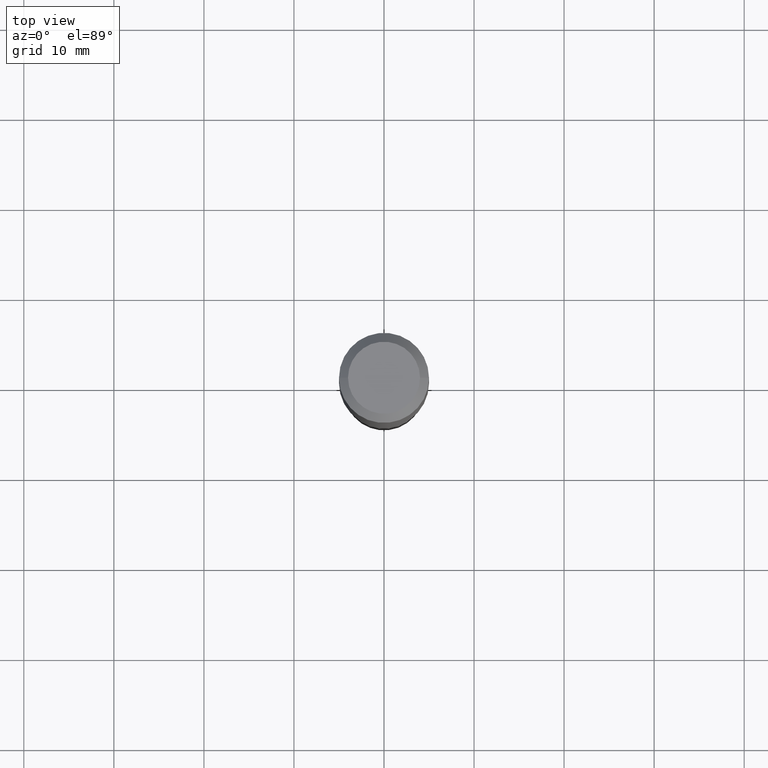
[diagram: clean part render]
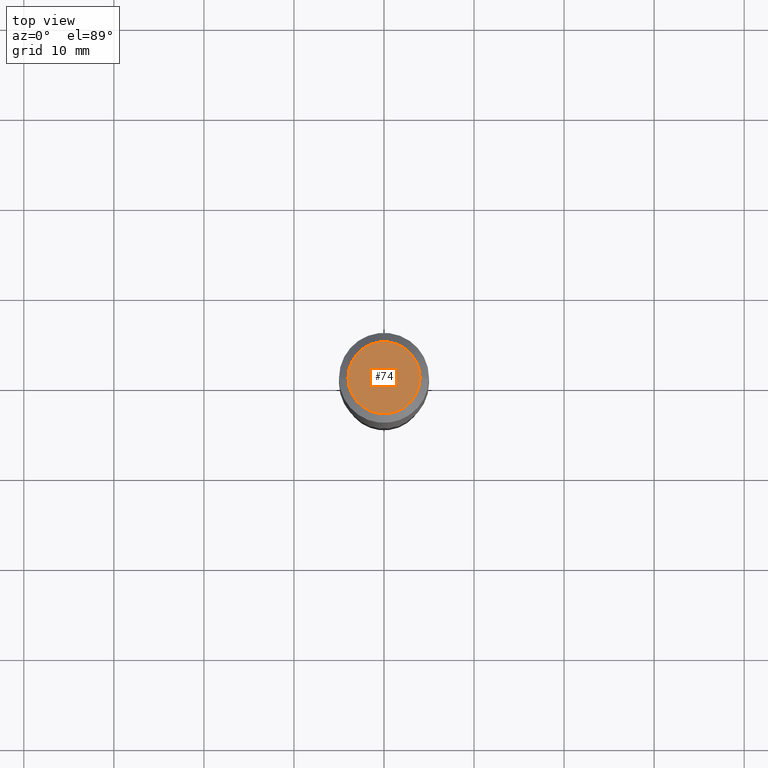
[diagram: same view with one face highlighted and labeled with its STEP entity id]
A machine part, top view. The second image highlights one B-rep face of the part: STEP entity #74.
In plain terms, the highlighted planar face has unit normal (0, -0, -1).
Its self-contained STEP definition (entity closure, byte-faithful):
#25 = CARTESIAN_POINT ( 'NONE',  ( -0.1574800000000000089, 1.168406772637159815E-15, 3.855188123707939751E-18 ) ) ;
#56 = CARTESIAN_POINT ( 'NONE',  ( -4.713871149261283817E-47, 6.730158695841841775E-33, 1.927594061857935365E-18 ) ) ;
#66 = VERTEX_POINT ( 'NONE', #25 ) ;
#74 = ADVANCED_FACE ( 'NONE', ( #455 ), #192, .F. ) ;
#77 = CARTESIAN_POINT ( 'NONE',  ( -9.427742298522567634E-47, 1.346031739168368355E-32, 3.855188123715870730E-18 ) ) ;
#85 = AXIS2_PLACEMENT_3D ( 'NONE', #56, #304, #193 ) ;
#104 = ORIENTED_EDGE ( 'NONE', *, *, #129, .T. ) ;
#108 = DIRECTION ( 'NONE',  ( 1.000000000000000000, -6.982962677686265922E-15, 4.876223630392693006E-29 ) ) ;
#128 = VERTEX_POINT ( 'NONE', #231 ) ;
#129 = EDGE_CURVE ( 'NONE', #66, #128, #200, .T. ) ;
#149 = EDGE_LOOP ( 'NONE', ( #104, #327 ) ) ;
#192 = PLANE ( 'NONE',  #85 ) ;
#193 = DIRECTION ( 'NONE',  ( -1.000000000000000000, 6.982962677686265922E-15, -4.876176775795935793E-29 ) ) ;
#200 = CIRCLE ( 'NONE', #377, 0.1574800000000000089 ) ;
#212 = AXIS2_PLACEMENT_3D ( 'NONE', #77, #428, #108 ) ;
#222 = CIRCLE ( 'NONE', #212, 0.1574800000000000089 ) ;
#231 = CARTESIAN_POINT ( 'NONE',  ( 0.1574800000000000089, -1.284169937930321386E-15, 3.855188123724205385E-18 ) ) ;
#234 = CARTESIAN_POINT ( 'NONE',  ( -9.427742298522567634E-47, 1.346031739168368355E-32, 3.855188123715870730E-18 ) ) ;
#304 = DIRECTION ( 'NONE',  ( 2.438088387897960049E-29, -3.491481338843145188E-15, -1.000000000000000000 ) ) ;
#327 = ORIENTED_EDGE ( 'NONE', *, *, #395, .T. ) ;
#377 = AXIS2_PLACEMENT_3D ( 'NONE', #234, #504, #465 ) ;
#395 = EDGE_CURVE ( 'NONE', #128, #66, #222, .T. ) ;
#428 = DIRECTION ( 'NONE',  ( -2.445468806185136597E-29, 3.491481338843145583E-15, 1.000000000000000000 ) ) ;
#455 = FACE_OUTER_BOUND ( 'NONE', #149, .T. ) ;
#465 = DIRECTION ( 'NONE',  ( 1.000000000000000000, -6.982962677686265922E-15, 4.876223630392693006E-29 ) ) ;
#504 = DIRECTION ( 'NONE',  ( -2.445468806185136597E-29, 3.491481338843145583E-15, 1.000000000000000000 ) ) ;